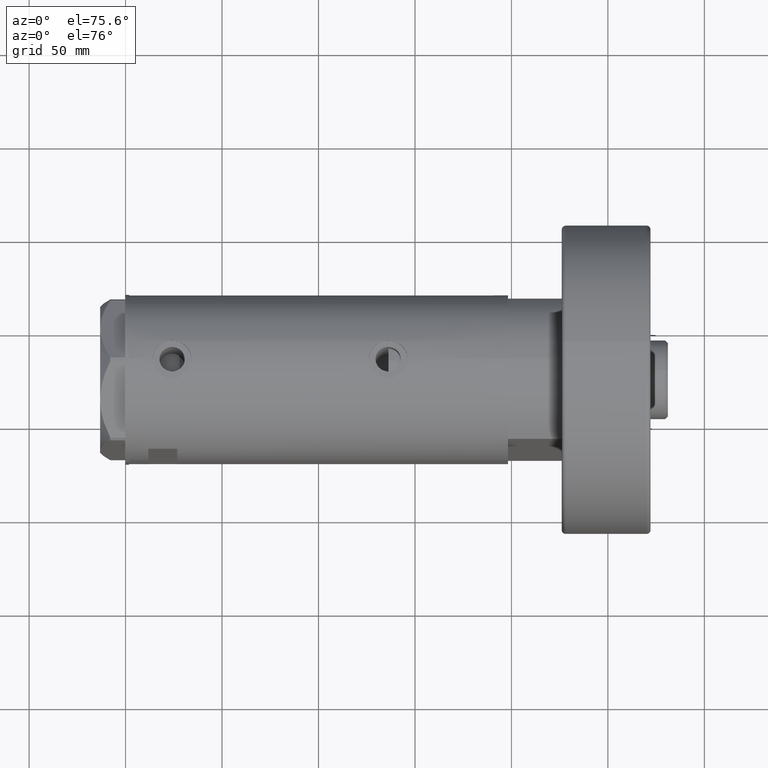
[diagram: clean part render]
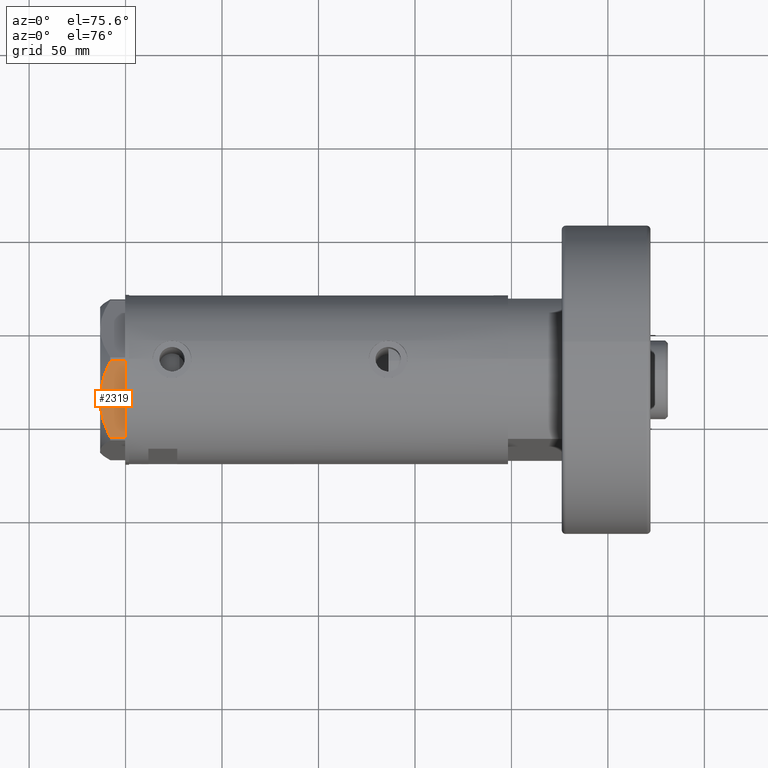
[diagram: same view with one face highlighted and labeled with its STEP entity id]
A machine part, auxiliary view. The second image highlights one B-rep face of the part: STEP entity #2319.
In plain terms, the highlighted planar face has unit normal (-0, 0.5, -0.866).
Its self-contained STEP definition (entity closure, byte-faithful):
#84 = EDGE_CURVE ( 'NONE', #1723, #886, #141, .T. ) ;
#135 = CARTESIAN_POINT ( 'NONE',  ( -22.01686507582220997, -30.87850234557913609, 12.83692902789789869 ) ) ;
#141 = LINE ( 'NONE', #2972, #364 ) ;
#364 = VECTOR ( 'NONE', #2492, 1000.000000000000227 ) ;
#374 = CARTESIAN_POINT ( 'NONE',  ( -11.20965750620535673, -37.11804654508558343, 12.01242981158399914 ) ) ;
#670 = EDGE_CURVE ( 'NONE', #3877, #5112, #3357, .T. ) ;
#679 = EDGE_CURVE ( 'NONE', #4531, #3877, #4815, .T. ) ;
#859 = CARTESIAN_POINT ( 'NONE',  ( -15.78316139395997908, -34.47753284435064813, 12.87183830165164800 ) ) ;
#886 = VERTEX_POINT ( 'NONE', #3148 ) ;
#993 = DIRECTION ( 'NONE',  ( 0.4999999999999998890, 0.8660254037844387076, -0.000000000000000000 ) ) ;
#1199 = VECTOR ( 'NONE', #6350, 1000.000000000000000 ) ;
#1201 = ORIENTED_EDGE ( 'NONE', *, *, #670, .F. ) ;
#1416 = ORIENTED_EDGE ( 'NONE', *, *, #84, .T. ) ;
#1509 = CARTESIAN_POINT ( 'NONE',  ( -22.79667224021351757, -30.42828046930181074, 12.73960743196720280 ) ) ;
#1723 = VERTEX_POINT ( 'NONE', #2748 ) ;
#1869 = FACE_OUTER_BOUND ( 'NONE', #4183, .T. ) ;
#2319 = ADVANCED_FACE ( 'NONE', ( #1869 ), #2439, .F. ) ;
#2380 = EDGE_CURVE ( 'NONE', #886, #5112, #3374, .T. ) ;
#2430 = CARTESIAN_POINT ( 'NONE',  ( -33.96695484073207183, -23.97911480296823683, 9.269459228581803600 ) ) ;
#2439 = PLANE ( 'NONE',  #6028 ) ;
#2466 = CARTESIAN_POINT ( 'NONE',  ( -5.984301592053449248, -40.13490718873278951, 10.17879673963541087 ) ) ;
#2492 = DIRECTION ( 'NONE',  ( 0.8660254037844385966, -0.4999999999999998890, 0.000000000000000000 ) ) ;
#2495 = CARTESIAN_POINT ( 'NONE',  ( -0.9699484522420150912, -43.02994532381475068, 7.709124142618884790 ) ) ;
#2552 = CARTESIAN_POINT ( 'NONE',  ( -36.78005154776155905, -22.35497266190830246, 7.709124142616896158 ) ) ;
#2646 = CARTESIAN_POINT ( 'NONE',  ( -6.717640657183465258, -39.71151368207270593, 10.48240969891360663 ) ) ;
#2748 = CARTESIAN_POINT ( 'NONE',  ( -36.78005154776141694, -22.35497266190838772, 0.000000000000000000 ) ) ;
#2887 = CARTESIAN_POINT ( 'NONE',  ( -0.9699484522385850571, -43.02994532381674020, 13.00000000000000000 ) ) ;
#2948 = DIRECTION ( 'NONE',  ( -0.8660254037844387076, 0.4999999999999998890, 0.000000000000000000 ) ) ;
#2972 = CARTESIAN_POINT ( 'NONE',  ( -37.74999999999999289, -21.79497266190838189, 0.000000000000000000 ) ) ;
#3148 = CARTESIAN_POINT ( 'NONE',  ( -0.9699484522385920515, -43.02994532381674020, 0.000000000000000000 ) ) ;
#3303 = CARTESIAN_POINT ( 'NONE',  ( -18.87499999999999645, -32.69245899286255508, 13.00000000000000000 ) ) ;
#3306 = DIRECTION ( 'NONE',  ( -0.000000000000000000, 0.000000000000000000, -1.000000000000000000 ) ) ;
#3357 = B_SPLINE_CURVE_WITH_KNOTS ( 'NONE', 3,
 ( #3303, #4806, #859, #4322, #374, #6307, #5097, #2646, #2466, #4873, #3936, #2495 ),
 .UNSPECIFIED., .F., .F.,
 ( 4, 2, 2, 2, 2, 4 ),
 ( 0.02259271946349905580, 0.02789559809390664002, 0.03319847672431422425, 0.03584991603951802330, 0.03850135535472180848, 0.04380423398512939964 ),
 .UNSPECIFIED. ) ;
#3374 = LINE ( 'NONE', #2887, #1199 ) ;
#3761 = LINE ( 'NONE', #5730, #4608 ) ;
#3790 = CARTESIAN_POINT ( 'NONE',  ( -18.87499999999999645, -32.69245899286255508, 13.00000000000000000 ) ) ;
#3877 = VERTEX_POINT ( 'NONE', #3790 ) ;
#3936 = CARTESIAN_POINT ( 'NONE',  ( -2.376799045726867732, -42.21769975495670479, 8.489459328479822986 ) ) ;
#4056 = CARTESIAN_POINT ( 'NONE',  ( -36.78005154776155905, -22.35497266190830246, 7.709124142616896158 ) ) ;
#4183 = EDGE_LOOP ( 'NONE', ( #5445, #5970, #1416, #5589, #1201 ) ) ;
#4322 = CARTESIAN_POINT ( 'NONE',  ( -12.72654504259227259, -36.24227111762220943, 12.37795492145981235 ) ) ;
#4531 = VERTEX_POINT ( 'NONE', #2552 ) ;
#4539 = CARTESIAN_POINT ( 'NONE',  ( -31.09047021924039811, -25.63985397350626272, 10.58681170757598977 ) ) ;
#4604 = CARTESIAN_POINT ( 'NONE',  ( -25.11263918036253884, -29.09115633297249204, 12.35956205105863326 ) ) ;
#4608 = VECTOR ( 'NONE', #3306, 1000.000000000000000 ) ;
#4806 = CARTESIAN_POINT ( 'NONE',  ( -17.32290914057169928, -33.58855906836025440, 12.99999999999999822 ) ) ;
#4815 = B_SPLINE_CURVE_WITH_KNOTS ( 'NONE', 3,
 ( #4056, #2430, #4539, #6072, #4604, #1509, #135, #5869, #4892, #5700 ),
 .UNSPECIFIED., .F., .F.,
 ( 4, 2, 2, 2, 4 ),
 ( 0.001231023567492484571, 0.01191187151549577550, 0.01725229548949741565, 0.01992250747649823572, 0.02259271946349905580 ),
 .UNSPECIFIED. ) ;
#4873 = CARTESIAN_POINT ( 'NONE',  ( -3.804046002727119014, -41.39367834013252434, 9.210778219601836625 ) ) ;
#4892 = CARTESIAN_POINT ( 'NONE',  ( -19.65653997226998584, -32.24123667949004357, 13.00000000000000178 ) ) ;
#5097 = CARTESIAN_POINT ( 'NONE',  ( -8.199247025946510448, -38.85610784623428060, 11.04644118613120085 ) ) ;
#5112 = VERTEX_POINT ( 'NONE', #5909 ) ;
#5338 = CARTESIAN_POINT ( 'NONE',  ( -37.74999999999999289, -21.79497266190838189, 13.00000000000000000 ) ) ;
#5445 = ORIENTED_EDGE ( 'NONE', *, *, #679, .F. ) ;
#5589 = ORIENTED_EDGE ( 'NONE', *, *, #2380, .T. ) ;
#5700 = CARTESIAN_POINT ( 'NONE',  ( -18.87499999999999645, -32.69245899286255508, 13.00000000000000000 ) ) ;
#5730 = CARTESIAN_POINT ( 'NONE',  ( -36.78005154776141694, -22.35497266190838772, 13.00000000000000000 ) ) ;
#5869 = CARTESIAN_POINT ( 'NONE',  ( -20.44120046918716582, -31.78821273037243245, 12.96759879420491579 ) ) ;
#5883 = EDGE_CURVE ( 'NONE', #4531, #1723, #3761, .T. ) ;
#5909 = CARTESIAN_POINT ( 'NONE',  ( -0.9699484522420150912, -43.02994532381475068, 7.709124142618884790 ) ) ;
#5970 = ORIENTED_EDGE ( 'NONE', *, *, #5883, .T. ) ;
#6028 = AXIS2_PLACEMENT_3D ( 'NONE', #5338, #993, #2948 ) ;
#6072 = CARTESIAN_POINT ( 'NONE',  ( -26.62598697109946855, -28.21742457861298803, 11.98878493998158312 ) ) ;
#6307 = CARTESIAN_POINT ( 'NONE',  ( -8.949419886525276979, -38.42299534324038746, 11.30742055474529195 ) ) ;
#6350 = DIRECTION ( 'NONE',  ( 0.000000000000000000, 0.000000000000000000, 1.000000000000000000 ) ) ;